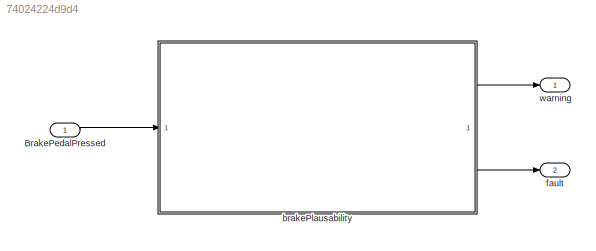
MODEL slx_74024224d9d4
KIND model
CONFIG AbsTol = auto
CONFIG EnableMultiTasking = on
CONFIG FixedStep = 0.1
CONFIG MaxStep = auto
CONFIG MinStep = auto
CONFIG RelTol = 1e-3
CONFIG SampleTimeConstraint = Unconstrained
CONFIG SolverName = FixedStepAuto
CONFIG StartTime = 0.0
CONFIG StopTime = 20
BLOCK [Inport] BrakePedalPressed
  OutDataTypeStr = boolean
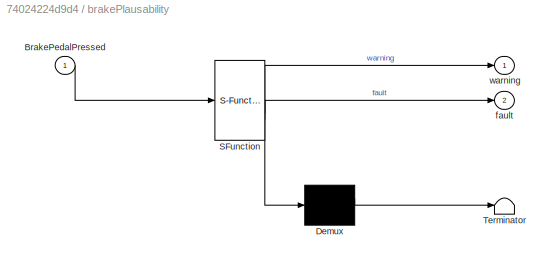
BLOCK [SubSystem] brakePlausability
  ErrorFcn = Stateflow.Translate.translate
  PermitHierarchicalResolution = ExplicitOnly
  SFBlockType = MATLAB Function
  TreatAsAtomicUnit = on
BLOCK [Demux] brakePlausability/ Demux 
  Outputs = 1
BLOCK [S-Function] brakePlausability/ SFunction 
  EnableBusSupport = on
  FunctionName = sf_sfun
  PortCounts = [1 3]
  SFcnIsStateOwnerBlock = off
  SFunctionDeploymentMode = off
  Tag = Stateflow S-Function 2
BLOCK [Terminator] brakePlausability/ Terminator 
BLOCK [Inport] brakePlausability/BrakePedalPressed
BLOCK [Outport] brakePlausability/fault
  Port = 2
BLOCK [Outport] brakePlausability/warning
BLOCK [Outport] fault
  Port = 2
BLOCK [Outport] warning
LINE BrakePedalPressed:1 -> brakePlausability:1
LINE brakePlausability:1 -> warning:1
LINE brakePlausability:2 -> fault:1
CHART brakePlausability states=1 transitions=1
  STATE_LABEL 'eML_blk_kernel()'
  STATE_LABEL 'SCRIPT:\nfunction [warning, fault] = brakePlausability(BrakePedalPressed)\n\n% initialization\nwarning = boolean(0);\nfault =  boolean(0);\n\n\nif ~islogical(BrakePedalPressed)\n    fault = boolean(1);\n    warning = boolean(1);\nend\n\n\n\n\n\n'
CHART  states=0 transitions=0
